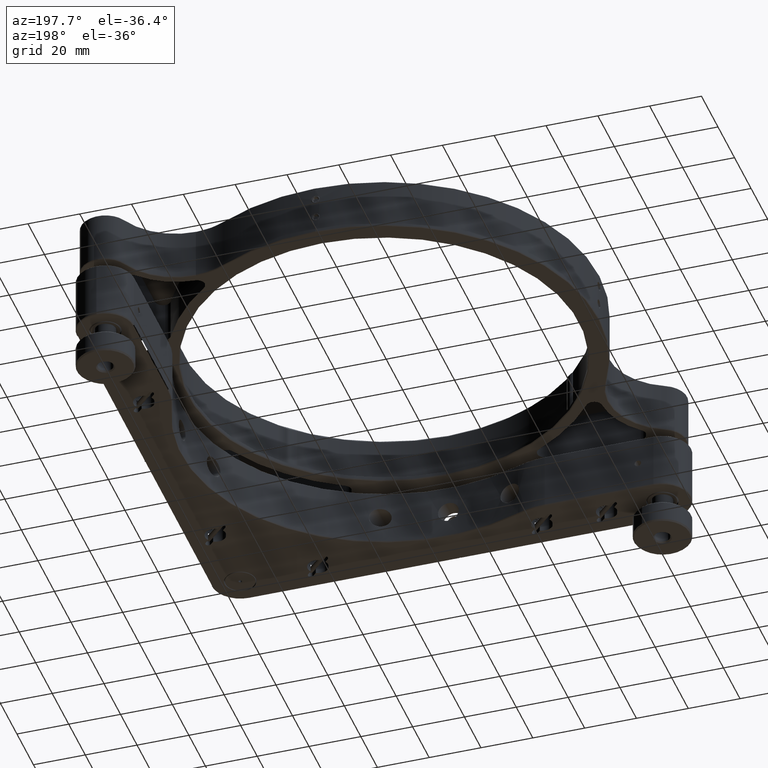
[diagram: clean part render]
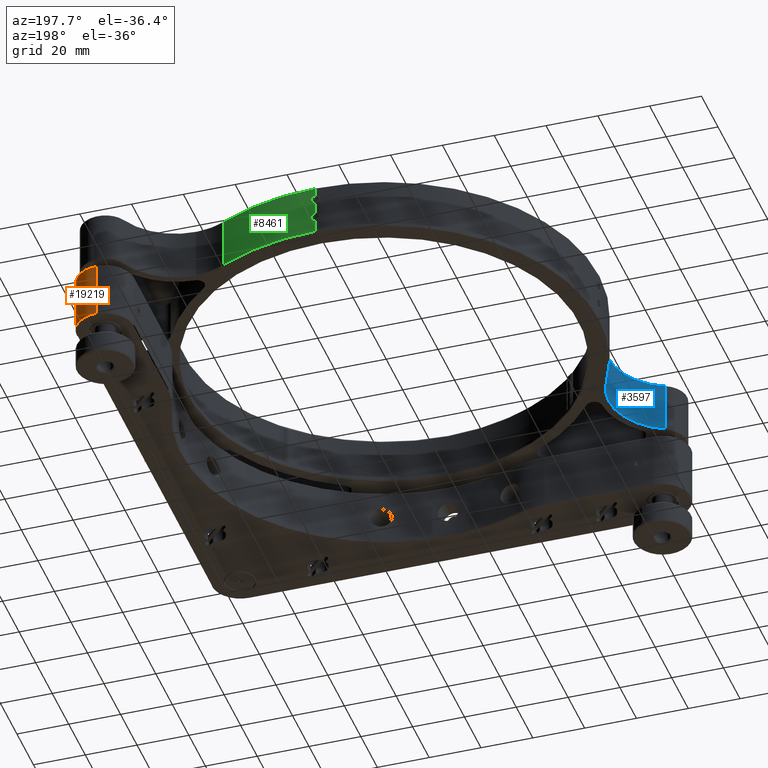
[diagram: same view with three faces highlighted in distinct colors, each labeled with its STEP entity id]
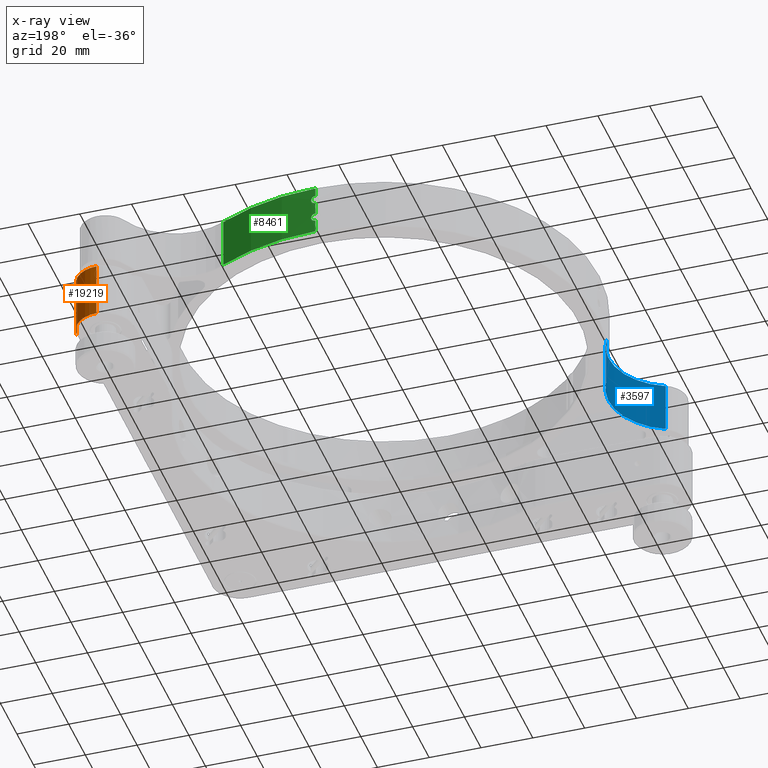
[diagram: x-ray of the same camera — body ghosted, the three highlighted faces saturated]
A machine part, auxiliary view with three faces highlighted in distinct colors.
The next image is the same camera in x-ray (body ghosted, the three faces saturated) — at least one of them is partly hidden behind the body in this view.
Their STEP definitions:

[orange] entity #19219 — the highlighted cylindrical surface (edge-blend (fillet) strip) has radius 11 mm, axis along (0, 0, -1).
#304 = VERTEX_POINT ( 'NONE', #7638 ) ;
#826 = DIRECTION ( 'NONE',  ( 1.000000000000000000, 0.000000000000000000, 0.000000000000000000 ) ) ;
#883 = ORIENTED_EDGE ( 'NONE', *, *, #4339, .F. ) ;
#1282 = EDGE_LOOP ( 'NONE', ( #883, #14607, #14649, #3152 ) ) ;
#3152 = ORIENTED_EDGE ( 'NONE', *, *, #16152, .T. ) ;
#3737 = CARTESIAN_POINT ( 'NONE',  ( 81.49999999999995737, 81.50000000000000000, 10.70000000000000462 ) ) ;
#3880 = LINE ( 'NONE', #14167, #11632 ) ;
#3932 = CIRCLE ( 'NONE', #18446, 10.99999999999999645 ) ;
#4339 = EDGE_CURVE ( 'NONE', #10250, #15500, #13313, .T. ) ;
#4426 = CARTESIAN_POINT ( 'NONE',  ( 81.49999999999995737, 92.50000000000000000, 10.70000000000000462 ) ) ;
#4442 = DIRECTION ( 'NONE',  ( -1.000000000000000000, 0.000000000000000000, 0.000000000000000000 ) ) ;
#4972 = EDGE_CURVE ( 'NONE', #17291, #304, #3880, .T. ) ;
#5641 = FACE_OUTER_BOUND ( 'NONE', #1282, .T. ) ;
#5704 = DIRECTION ( 'NONE',  ( 0.000000000000000000, 0.000000000000000000, -1.000000000000000000 ) ) ;
#5791 = DIRECTION ( 'NONE',  ( 0.000000000000000000, 0.000000000000000000, -1.000000000000000000 ) ) ;
#7091 = CARTESIAN_POINT ( 'NONE',  ( 92.49999999999997158, 81.50000000000000000, -10.69999999999992113 ) ) ;
#7484 = CARTESIAN_POINT ( 'NONE',  ( 81.49999999999995737, 92.50000000000000000, 11.00000000000000000 ) ) ;
#7526 = CIRCLE ( 'NONE', #16980, 10.99999999999999645 ) ;
#7638 = CARTESIAN_POINT ( 'NONE',  ( 92.49999999999997158, 81.50000000000000000, 10.70000000000000462 ) ) ;
#8011 = EDGE_CURVE ( 'NONE', #10250, #304, #7526, .T. ) ;
#8342 = CARTESIAN_POINT ( 'NONE',  ( 81.49999999999995737, 81.50000000000000000, -10.69999999999992113 ) ) ;
#8491 = DIRECTION ( 'NONE',  ( 1.000000000000000000, 0.000000000000000000, 0.000000000000000000 ) ) ;
#8800 = DIRECTION ( 'NONE',  ( 0.000000000000000000, 0.000000000000000000, -1.000000000000000000 ) ) ;
#10189 = CYLINDRICAL_SURFACE ( 'NONE', #18017, 10.99999999999999645 ) ;
#10250 = VERTEX_POINT ( 'NONE', #4426 ) ;
#11632 = VECTOR ( 'NONE', #14064, 1000.000000000000000 ) ;
#13313 = LINE ( 'NONE', #7484, #17300 ) ;
#14064 = DIRECTION ( 'NONE',  ( -0.000000000000000000, -0.000000000000000000, 1.000000000000000000 ) ) ;
#14093 = CARTESIAN_POINT ( 'NONE',  ( 81.49999999999995737, 92.50000000000000000, -10.69999999999992113 ) ) ;
#14167 = CARTESIAN_POINT ( 'NONE',  ( 92.49999999999997158, 81.50000000000000000, 11.00000000000000000 ) ) ;
#14370 = DIRECTION ( 'NONE',  ( 0.000000000000000000, 0.000000000000000000, 1.000000000000000000 ) ) ;
#14607 = ORIENTED_EDGE ( 'NONE', *, *, #8011, .T. ) ;
#14649 = ORIENTED_EDGE ( 'NONE', *, *, #4972, .F. ) ;
#15500 = VERTEX_POINT ( 'NONE', #14093 ) ;
#16152 = EDGE_CURVE ( 'NONE', #17291, #15500, #3932, .T. ) ;
#16980 = AXIS2_PLACEMENT_3D ( 'NONE', #3737, #5791, #8491 ) ;
#17291 = VERTEX_POINT ( 'NONE', #7091 ) ;
#17300 = VECTOR ( 'NONE', #5704, 1000.000000000000000 ) ;
#18017 = AXIS2_PLACEMENT_3D ( 'NONE', #19062, #8800, #4442 ) ;
#18446 = AXIS2_PLACEMENT_3D ( 'NONE', #8342, #14370, #826 ) ;
#19062 = CARTESIAN_POINT ( 'NONE',  ( 81.49999999999995737, 81.50000000000000000, 11.00000000000000000 ) ) ;
#19219 = ADVANCED_FACE ( 'NONE', ( #5641 ), #10189, .T. ) ;

[blue] entity #3597 — the highlighted cylindrical surface (partial cylindrical patch) has radius 25 mm, axis along (-0, 0, -1).
#1085 = LINE ( 'NONE', #12662, #14453 ) ;
#1087 = EDGE_LOOP ( 'NONE', ( #11268, #10114, #19132, #11315 ) ) ;
#1808 = EDGE_CURVE ( 'NONE', #7233, #13705, #15129, .T. ) ;
#2321 = VERTEX_POINT ( 'NONE', #4157 ) ;
#2501 = AXIS2_PLACEMENT_3D ( 'NONE', #8504, #10091, #16197 ) ;
#3597 = ADVANCED_FACE ( 'NONE', ( #3650 ), #3947, .F. ) ;
#3650 = FACE_OUTER_BOUND ( 'NONE', #1087, .T. ) ;
#3711 = EDGE_CURVE ( 'NONE', #9000, #13705, #1085, .T. ) ;
#3947 = CYLINDRICAL_SURFACE ( 'NONE', #10660, 25.00000000000015987 ) ;
#4157 = CARTESIAN_POINT ( 'NONE',  ( -73.54632436757624703, -38.46996454403544163, 34.66318352574926109 ) ) ;
#4443 = DIRECTION ( 'NONE',  ( -5.551115123125747203E-16, 1.000000000000000000, 0.000000000000000000 ) ) ;
#5531 = CARTESIAN_POINT ( 'NONE',  ( -95.69883170720788712, -50.05730326211854475, 34.91318352574927530 ) ) ;
#7233 = VERTEX_POINT ( 'NONE', #17010 ) ;
#8211 = DIRECTION ( 'NONE',  ( 5.551115123125747203E-16, -1.000000000000000000, 0.000000000000000000 ) ) ;
#8504 = CARTESIAN_POINT ( 'NONE',  ( -95.69883170720788712, -50.05730326211854475, 15.16318352574926642 ) ) ;
#9000 = VERTEX_POINT ( 'NONE', #11275 ) ;
#10091 = DIRECTION ( 'NONE',  ( -1.460576560598801204E-21, 3.273491101935708560E-36, -1.000000000000000000 ) ) ;
#10114 = ORIENTED_EDGE ( 'NONE', *, *, #1808, .T. ) ;
#10283 = DIRECTION ( 'NONE',  ( 1.460576560598801204E-21, -3.273491101935708560E-36, 1.000000000000000000 ) ) ;
#10660 = AXIS2_PLACEMENT_3D ( 'NONE', #5531, #12951, #8211 ) ;
#11131 = CARTESIAN_POINT ( 'NONE',  ( -85.40982322372408930, -72.84186611565618819, 15.16318352574926642 ) ) ;
#11268 = ORIENTED_EDGE ( 'NONE', *, *, #11327, .F. ) ;
#11273 = LINE ( 'NONE', #12576, #14696 ) ;
#11275 = CARTESIAN_POINT ( 'NONE',  ( -85.40982322372408930, -72.84186611565618819, 34.66318352574926109 ) ) ;
#11315 = ORIENTED_EDGE ( 'NONE', *, *, #16729, .T. ) ;
#11327 = EDGE_CURVE ( 'NONE', #7233, #2321, #11273, .T. ) ;
#12576 = CARTESIAN_POINT ( 'NONE',  ( -73.54632436757624703, -38.46996454403544163, 14.91318352574928063 ) ) ;
#12662 = CARTESIAN_POINT ( 'NONE',  ( -85.40982322372408930, -72.84186611565618819, 34.91318352574927530 ) ) ;
#12951 = DIRECTION ( 'NONE',  ( -1.460576560598801204E-21, 3.273491101935708560E-36, -1.000000000000000000 ) ) ;
#13438 = CARTESIAN_POINT ( 'NONE',  ( -95.69883170720788712, -50.05730326211854475, 34.66318352574926109 ) ) ;
#13705 = VERTEX_POINT ( 'NONE', #11131 ) ;
#14055 = AXIS2_PLACEMENT_3D ( 'NONE', #13438, #10283, #4443 ) ;
#14453 = VECTOR ( 'NONE', #17863, 1000.000000000000000 ) ;
#14696 = VECTOR ( 'NONE', #17194, 1000.000000000000000 ) ;
#15129 = CIRCLE ( 'NONE', #2501, 25.00000000000015987 ) ;
#16197 = DIRECTION ( 'NONE',  ( -5.551115123125747203E-16, 1.000000000000000000, 0.000000000000000000 ) ) ;
#16729 = EDGE_CURVE ( 'NONE', #9000, #2321, #19092, .T. ) ;
#17010 = CARTESIAN_POINT ( 'NONE',  ( -73.54632436757624703, -38.46996454403544163, 15.16318352574926642 ) ) ;
#17194 = DIRECTION ( 'NONE',  ( 1.460576560598801204E-21, -3.273491101935708560E-36, 1.000000000000000000 ) ) ;
#17863 = DIRECTION ( 'NONE',  ( -1.460576560598801204E-21, 3.273491101935708560E-36, -1.000000000000000000 ) ) ;
#19092 = CIRCLE ( 'NONE', #14055, 25.00000000000015987 ) ;
#19132 = ORIENTED_EDGE ( 'NONE', *, *, #3711, .F. ) ;

[green] entity #8461 — the highlighted cylindrical surface (partial cylindrical patch) has radius 83 mm, axis along (0, -0, 1).
#37 = ORIENTED_EDGE ( 'NONE', *, *, #4295, .T. ) ;
#250 = CARTESIAN_POINT ( 'NONE',  ( 1.244005947712385041, 82.99071260714245568, 30.75259266365121391 ) ) ;
#269 = DIRECTION ( 'NONE',  ( 1.460576560598801204E-21, -3.273491101935708560E-36, 1.000000000000000000 ) ) ;
#440 = CARTESIAN_POINT ( 'NONE',  ( 1.319145990457344153, 82.98965614296878357, 28.64893158218055902 ) ) ;
#533 = CARTESIAN_POINT ( 'NONE',  ( 1.483369023669906861, 82.98675390919508743, 30.39380074767527162 ) ) ;
#634 = CARTESIAN_POINT ( 'NONE',  ( 1.606617821863817852, 82.98448981801413993, 29.23019384708998203 ) ) ;
#730 = FACE_OUTER_BOUND ( 'NONE', #14588, .T. ) ;
#761 = CARTESIAN_POINT ( 'NONE',  ( 0.2162218794369369090, 82.99978535108139965, 20.02388260894138483 ) ) ;
#864 = CARTESIAN_POINT ( 'NONE',  ( 1.442071199403915704, 82.98751232467132866, 20.83304405360878775 ) ) ;
#963 = CARTESIAN_POINT ( 'NONE',  ( -1.015611205921502709E-13, 83.00000000000038369, 20.01318352574929094 ) ) ;
#1038 = VERTEX_POINT ( 'NONE', #9615 ) ;
#1155 = CARTESIAN_POINT ( 'NONE',  ( 1.312207424727597882, 82.98964803666970624, 22.66925216000973364 ) ) ;
#1164 = DIRECTION ( 'NONE',  ( -6.383782391594641233E-16, 1.000000000000000000, 0.000000000000000000 ) ) ;
#1281 = B_SPLINE_CURVE_WITH_KNOTS ( 'NONE', 3,
 ( #963, #6989, #761, #14407, #13022, #12825, #11339, #3824, #15886, #2346, #864, #12926, #14794, #16174, #4409, #13407, #7082, #8580, #8765, #1155, #19522, #14697, #5999, #19129, #13219, #19322, #2547, #18039, #16266, #19418 ),
 .UNSPECIFIED., .F., .F.,
 ( 4, 2, 2, 2, 2, 2, 2, 2, 2, 2, 2, 2, 2, 2, 4 ),
 ( 3.378853055527068255E-21, 0.0003224238326682118462, 0.0006448476653364236923, 0.0009672714980046354842, 0.001289695330672847601, 0.001934542996009272703, 0.002579390661345698239, 0.002901814494013905260, 0.003224238326682112715, 0.003546662159350319737, 0.003869085992018527192, 0.004191509824686734213, 0.004513933657354942536, 0.004836357490023149991, 0.005158781322691357446 ),
 .UNSPECIFIED. ) ;
#1456 = LINE ( 'NONE', #12034, #11852 ) ;
#1667 = CARTESIAN_POINT ( 'NONE',  ( -1.015611205921502709E-13, 83.00000000000038369, 20.01318352574929094 ) ) ;
#1993 = LINE ( 'NONE', #15437, #17492 ) ;
#2182 = VERTEX_POINT ( 'NONE', #17875 ) ;
#2215 = CARTESIAN_POINT ( 'NONE',  ( 1.090828981566706490, 82.99286647267373951, 28.42053296333557455 ) ) ;
#2346 = CARTESIAN_POINT ( 'NONE',  ( 1.319145990457343709, 82.98965614296878357, 20.64893158218055902 ) ) ;
#2378 = ORIENTED_EDGE ( 'NONE', *, *, #17481, .T. ) ;
#2547 = CARTESIAN_POINT ( 'NONE',  ( 0.4284805945763788260, 82.99896131696006307, 23.26021958299323344 ) ) ;
#2610 = CARTESIAN_POINT ( 'NONE',  ( 38.46996454403527821, 73.54632436757621861, 34.66318352574926109 ) ) ;
#2717 = DIRECTION ( 'NONE',  ( -1.460576560598801204E-21, 3.273491101935708560E-36, -1.000000000000000000 ) ) ;
#3315 = CARTESIAN_POINT ( 'NONE',  ( 0.4284805945763797141, 82.99896131696009149, 31.26021958299323700 ) ) ;
#3485 = ORIENTED_EDGE ( 'NONE', *, *, #9400, .T. ) ;
#3724 = AXIS2_PLACEMENT_3D ( 'NONE', #18800, #14481, #5278 ) ;
#3824 = CARTESIAN_POINT ( 'NONE',  ( 1.005906847539338456, 82.99395276697232759, 20.35082659729658161 ) ) ;
#4295 = EDGE_CURVE ( 'NONE', #10175, #1038, #1281, .T. ) ;
#4409 = CARTESIAN_POINT ( 'NONE',  ( 1.639309193285361621, 82.98381233299737403, 21.87953090854969673 ) ) ;
#4616 = CARTESIAN_POINT ( 'NONE',  ( 38.46996454403527821, 73.54632436757621861, 15.16318352574926642 ) ) ;
#4895 = CARTESIAN_POINT ( 'NONE',  ( 1.090010272821319015, 82.99287805254371619, 30.90666278686786583 ) ) ;
#5089 = CARTESIAN_POINT ( 'NONE',  ( 1.312207424727598104, 82.98964803666972045, 30.66925216000973364 ) ) ;
#5278 = DIRECTION ( 'NONE',  ( -6.383782391594642219E-16, 1.000000000000000000, 0.000000000000000000 ) ) ;
#5492 = LINE ( 'NONE', #5788, #13666 ) ;
#5788 = CARTESIAN_POINT ( 'NONE',  ( 38.46996454403527821, 73.54632436757621861, 14.91318352574928063 ) ) ;
#5999 = CARTESIAN_POINT ( 'NONE',  ( 1.006486872088891094, 82.99394538491959850, 22.97506753780386290 ) ) ;
#6382 = CARTESIAN_POINT ( 'NONE',  ( -1.014639511679206109E-13, 83.00000000000038369, 28.01318352574929094 ) ) ;
#6541 = DIRECTION ( 'NONE',  ( 1.460576560598801204E-21, -3.273491101935708560E-36, 1.000000000000000000 ) ) ;
#6672 = CARTESIAN_POINT ( 'NONE',  ( 0.2170554761831341162, 82.99978350715393560, 31.30239269736979324 ) ) ;
#6989 = CARTESIAN_POINT ( 'NONE',  ( 0.1090222271258996234, 83.00000000000036948, 20.01318352574929449 ) ) ;
#7014 = AXIS2_PLACEMENT_3D ( 'NONE', #7391, #19426, #1164 ) ;
#7082 = CARTESIAN_POINT ( 'NONE',  ( 1.566012095251259062, 82.98523551911638663, 22.19402371157266529 ) ) ;
#7391 = CARTESIAN_POINT ( 'NONE',  ( -4.857222848096353156E-14, -2.081668171172168513E-14, 34.66318352574926109 ) ) ;
#8152 = CARTESIAN_POINT ( 'NONE',  ( 0.2162218794369369645, 82.99978535108142808, 28.02388260894138483 ) ) ;
#8461 = ADVANCED_FACE ( 'NONE', ( #730 ), #12792, .T. ) ;
#8580 = CARTESIAN_POINT ( 'NONE',  ( 1.483369023669906861, 82.98675390919514427, 22.39380074767527873 ) ) ;
#8739 = VERTEX_POINT ( 'NONE', #2610 ) ;
#8765 = CARTESIAN_POINT ( 'NONE',  ( 1.431682954279387188, 82.98767290082459169, 22.49043580938393205 ) ) ;
#8772 = ORIENTED_EDGE ( 'NONE', *, *, #15422, .T. ) ;
#8919 = CARTESIAN_POINT ( 'NONE',  ( -1.017596939506928786E-13, 82.99999999999997158, 31.31318352574927033 ) ) ;
#9207 = ORIENTED_EDGE ( 'NONE', *, *, #17000, .T. ) ;
#9345 = CARTESIAN_POINT ( 'NONE',  ( 1.650038068527944102, 82.98359701997652849, 29.77022022890671948 ) ) ;
#9385 = CARTESIAN_POINT ( 'NONE',  ( -1.015576511775864722E-13, 83.00000000000051159, 14.91318352574928063 ) ) ;
#9400 = EDGE_CURVE ( 'NONE', #2182, #15260, #12170, .T. ) ;
#9446 = CARTESIAN_POINT ( 'NONE',  ( 1.005906847539339122, 82.99395276697232759, 28.35082659729658516 ) ) ;
#9543 = CARTESIAN_POINT ( 'NONE',  ( 1.566012095251259062, 82.98523551911640084, 30.19402371157267240 ) ) ;
#9615 = CARTESIAN_POINT ( 'NONE',  ( -1.017597056353053399E-13, 82.99999999999997158, 23.31318352574927033 ) ) ;
#9630 = CARTESIAN_POINT ( 'NONE',  ( 0.4271252669298001292, 82.99896797089157019, 28.06580335705287155 ) ) ;
#9634 = CARTESIAN_POINT ( 'NONE',  ( -1.015576365718205138E-13, 82.99999999999995737, 34.66318352574926109 ) ) ;
#9656 = CARTESIAN_POINT ( 'NONE',  ( -4.857225696220646199E-14, -2.081668171172168513E-14, 15.16318352574926642 ) ) ;
#10175 = VERTEX_POINT ( 'NONE', #1667 ) ;
#10521 = EDGE_CURVE ( 'NONE', #17409, #10838, #16585, .T. ) ;
#10540 = CARTESIAN_POINT ( 'NONE',  ( -1.015576508124423482E-13, 83.00000000000048317, 15.16318352574926642 ) ) ;
#10816 = CIRCLE ( 'NONE', #7014, 83.00000000000054001 ) ;
#10838 = VERTEX_POINT ( 'NONE', #10540 ) ;
#10873 = LINE ( 'NONE', #9385, #16261 ) ;
#11031 = VERTEX_POINT ( 'NONE', #9634 ) ;
#11101 = ORIENTED_EDGE ( 'NONE', *, *, #10521, .T. ) ;
#11115 = CARTESIAN_POINT ( 'NONE',  ( 0.8277647010727563481, 82.99592033334145924, 31.09456785025114200 ) ) ;
#11206 = CARTESIAN_POINT ( 'NONE',  ( 0.7317572601911289665, 82.99683437021862176, 28.18037186206470679 ) ) ;
#11339 = CARTESIAN_POINT ( 'NONE',  ( 0.8265358119160712835, 82.99593293062004307, 20.23106347309845887 ) ) ;
#11852 = VECTOR ( 'NONE', #269, 1000.000000000000000 ) ;
#12034 = CARTESIAN_POINT ( 'NONE',  ( -1.015576511775864722E-13, 83.00000000000051159, 14.91318352574928063 ) ) ;
#12170 = B_SPLINE_CURVE_WITH_KNOTS ( 'NONE', 3,
 ( #6382, #12323, #8152, #9630, #18609, #11206, #12415, #9446, #2215, #440, #12508, #634, #13890, #9345, #16851, #18421, #9543, #533, #16944, #5089, #250, #4895, #17225, #11115, #14179, #14078, #3315, #6672, #15653, #18513 ),
 .UNSPECIFIED., .F., .F.,
 ( 4, 2, 2, 2, 2, 2, 2, 2, 2, 2, 2, 2, 2, 2, 4 ),
 ( 9.104007508989719103E-20, 0.0003224238326682120630, 0.0006448476653364240176, 0.0009672714980046361348, 0.001289695330672848252, 0.001934542996009273787, 0.002579390661345699106, 0.002901814494013906995, 0.003224238326682114016, 0.003546662159350321471, 0.003869085992018528493, 0.004191509824686735948, 0.004513933657354943403, 0.004836357490023150858, 0.005158781322691358313 ),
 .UNSPECIFIED. ) ;
#12323 = CARTESIAN_POINT ( 'NONE',  ( 0.1090222271258996234, 83.00000000000039790, 28.01318352574929804 ) ) ;
#12415 = CARTESIAN_POINT ( 'NONE',  ( 0.8265358119160713946, 82.99593293062004307, 28.23106347309845532 ) ) ;
#12490 = AXIS2_PLACEMENT_3D ( 'NONE', #9656, #18634, #12533 ) ;
#12508 = CARTESIAN_POINT ( 'NONE',  ( 1.442071199403915260, 82.98751232467130023, 28.83304405360878420 ) ) ;
#12533 = DIRECTION ( 'NONE',  ( -6.383782391594642219E-16, 1.000000000000000000, 0.000000000000000000 ) ) ;
#12792 = CYLINDRICAL_SURFACE ( 'NONE', #3724, 83.00000000000054001 ) ;
#12825 = CARTESIAN_POINT ( 'NONE',  ( 0.7317572601911285224, 82.99683437021863597, 20.18037186206469613 ) ) ;
#12926 = CARTESIAN_POINT ( 'NONE',  ( 1.606617821863817852, 82.98448981801411151, 21.23019384708998203 ) ) ;
#13022 = CARTESIAN_POINT ( 'NONE',  ( 0.5319214599100620111, 82.99835566880732074, 20.09753392309591646 ) ) ;
#13219 = CARTESIAN_POINT ( 'NONE',  ( 0.7313396330748963559, 82.99683814317243957, 23.14620617975907990 ) ) ;
#13278 = EDGE_CURVE ( 'NONE', #11031, #8739, #10816, .T. ) ;
#13407 = CARTESIAN_POINT ( 'NONE',  ( 1.597176993717825733, 82.98463393665149113, 22.09116304859235669 ) ) ;
#13666 = VECTOR ( 'NONE', #2717, 1000.000000000000000 ) ;
#13890 = CARTESIAN_POINT ( 'NONE',  ( 1.649923551578219794, 82.98359929696816550, 29.44735440907219370 ) ) ;
#13925 = EDGE_CURVE ( 'NONE', #8739, #17409, #5492, .T. ) ;
#14078 = CARTESIAN_POINT ( 'NONE',  ( 0.5313511903001276737, 82.99835941351756219, 31.22903146337894142 ) ) ;
#14179 = CARTESIAN_POINT ( 'NONE',  ( 0.7313396330748956897, 82.99683814317239694, 31.14620617975907280 ) ) ;
#14407 = CARTESIAN_POINT ( 'NONE',  ( 0.4271252669298004068, 82.99896797089158440, 20.06580335705287510 ) ) ;
#14481 = DIRECTION ( 'NONE',  ( 1.460576560598801204E-21, -3.273491101935708560E-36, 1.000000000000000000 ) ) ;
#14588 = EDGE_LOOP ( 'NONE', ( #11101, #9207, #37, #2378, #3485, #8772, #17023, #17411 ) ) ;
#14697 = CARTESIAN_POINT ( 'NONE',  ( 1.090010272821319015, 82.99287805254377304, 22.90666278686787649 ) ) ;
#14794 = CARTESIAN_POINT ( 'NONE',  ( 1.649923551578219350, 82.98359929696815129, 21.44735440907219015 ) ) ;
#15260 = VERTEX_POINT ( 'NONE', #8919 ) ;
#15422 = EDGE_CURVE ( 'NONE', #15260, #11031, #1993, .T. ) ;
#15437 = CARTESIAN_POINT ( 'NONE',  ( -1.015576511775864722E-13, 83.00000000000051159, 14.91318352574928063 ) ) ;
#15653 = CARTESIAN_POINT ( 'NONE',  ( 0.1076896406449325827, 82.99999999999998579, 31.31318352574927033 ) ) ;
#15697 = DIRECTION ( 'NONE',  ( 1.460576560598801204E-21, -3.273491101935708560E-36, 1.000000000000000000 ) ) ;
#15886 = CARTESIAN_POINT ( 'NONE',  ( 1.090828981566706934, 82.99286647267373951, 20.42053296333557100 ) ) ;
#16174 = CARTESIAN_POINT ( 'NONE',  ( 1.650038068527944768, 82.98359701997657112, 21.77022022890672659 ) ) ;
#16261 = VECTOR ( 'NONE', #15697, 1000.000000000000000 ) ;
#16266 = CARTESIAN_POINT ( 'NONE',  ( 0.1076896406449331656, 82.99999999999991473, 23.31318352574926323 ) ) ;
#16585 = CIRCLE ( 'NONE', #12490, 83.00000000000054001 ) ;
#16851 = CARTESIAN_POINT ( 'NONE',  ( 1.639309193285361399, 82.98381233299737403, 29.87953090854970029 ) ) ;
#16944 = CARTESIAN_POINT ( 'NONE',  ( 1.431682954279386522, 82.98767290082456327, 30.49043580938392140 ) ) ;
#17000 = EDGE_CURVE ( 'NONE', #10838, #10175, #10873, .T. ) ;
#17023 = ORIENTED_EDGE ( 'NONE', *, *, #13278, .T. ) ;
#17225 = CARTESIAN_POINT ( 'NONE',  ( 1.006486872088890427, 82.99394538491959850, 30.97506753780385935 ) ) ;
#17409 = VERTEX_POINT ( 'NONE', #4616 ) ;
#17411 = ORIENTED_EDGE ( 'NONE', *, *, #13925, .T. ) ;
#17481 = EDGE_CURVE ( 'NONE', #1038, #2182, #1456, .T. ) ;
#17492 = VECTOR ( 'NONE', #6541, 1000.000000000000000 ) ;
#17875 = CARTESIAN_POINT ( 'NONE',  ( -1.014639511679206109E-13, 83.00000000000038369, 28.01318352574929094 ) ) ;
#18039 = CARTESIAN_POINT ( 'NONE',  ( 0.2170554761831337276, 82.99978350715394981, 23.30239269736979324 ) ) ;
#18421 = CARTESIAN_POINT ( 'NONE',  ( 1.597176993717826843, 82.98463393665153376, 30.09116304859237445 ) ) ;
#18513 = CARTESIAN_POINT ( 'NONE',  ( -1.017596939506928786E-13, 82.99999999999997158, 31.31318352574927033 ) ) ;
#18609 = CARTESIAN_POINT ( 'NONE',  ( 0.5319214599100621221, 82.99835566880732074, 28.09753392309592002 ) ) ;
#18634 = DIRECTION ( 'NONE',  ( 1.460576560598801204E-21, -3.273491101935708560E-36, 1.000000000000000000 ) ) ;
#18800 = CARTESIAN_POINT ( 'NONE',  ( -4.857225732735059864E-14, -2.081668171172168513E-14, 14.91318352574928063 ) ) ;
#19129 = CARTESIAN_POINT ( 'NONE',  ( 0.8277647010727563481, 82.99592033334145924, 23.09456785025114200 ) ) ;
#19322 = CARTESIAN_POINT ( 'NONE',  ( 0.5313511903001287839, 82.99835941351754798, 23.22903146337894498 ) ) ;
#19418 = CARTESIAN_POINT ( 'NONE',  ( -1.017597056353053399E-13, 82.99999999999997158, 23.31318352574927033 ) ) ;
#19426 = DIRECTION ( 'NONE',  ( -1.460576560598801204E-21, 3.273491101935708560E-36, -1.000000000000000000 ) ) ;
#19522 = CARTESIAN_POINT ( 'NONE',  ( 1.244005947712384819, 82.99071260714242726, 22.75259266365120681 ) ) ;